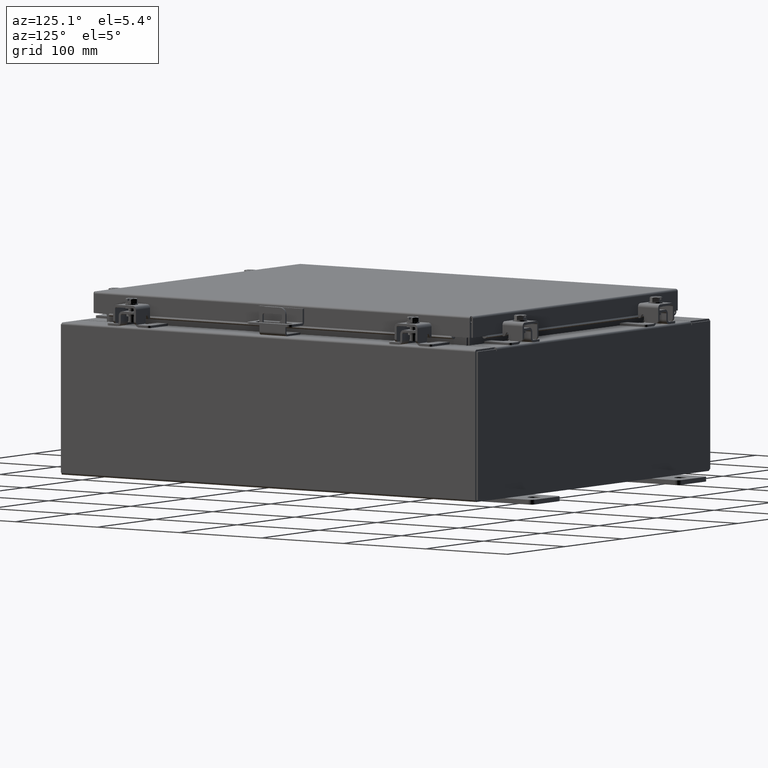
[diagram: clean part render]
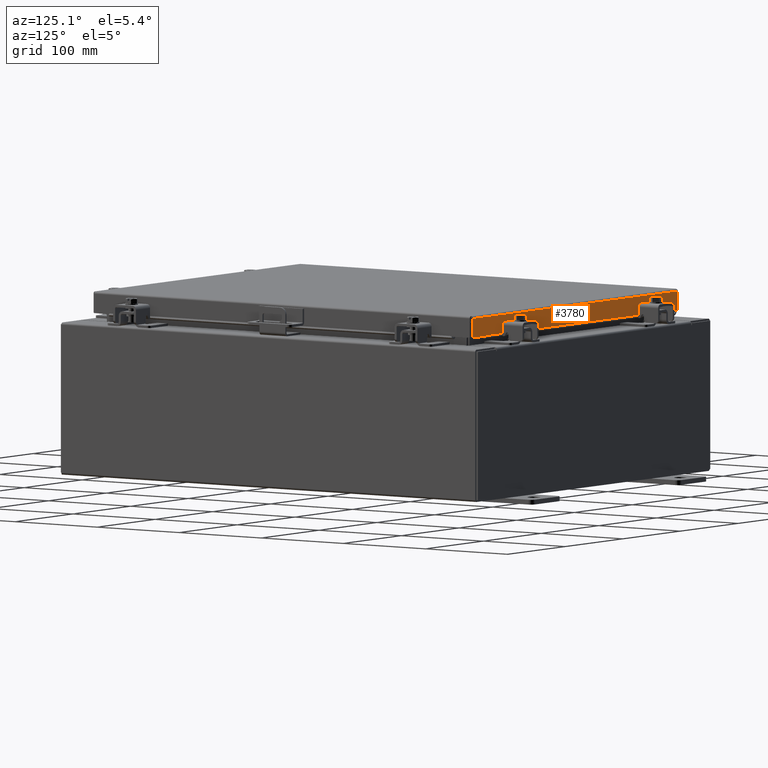
[diagram: same view with one face highlighted and labeled with its STEP entity id]
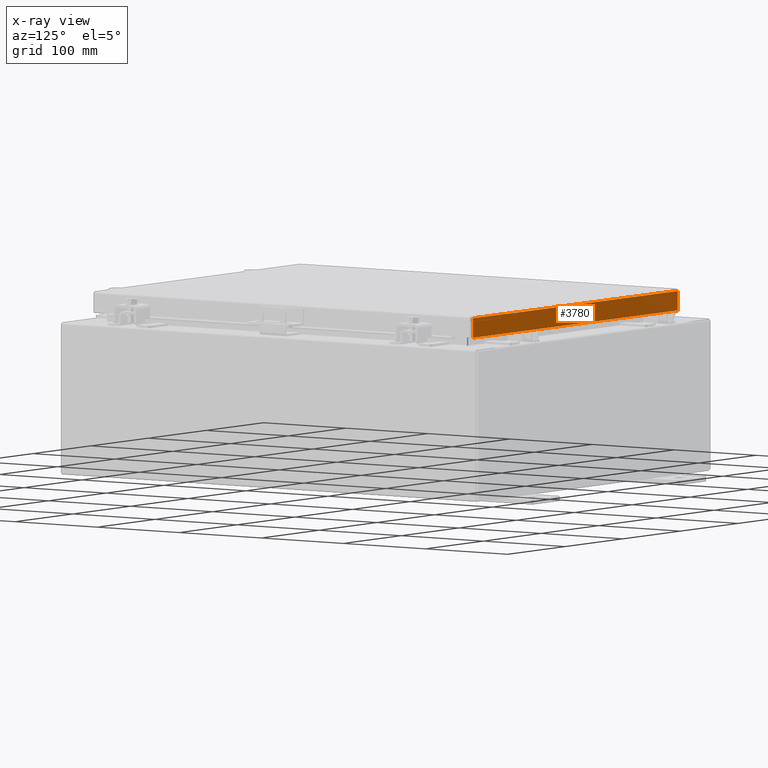
[diagram: x-ray of the same camera — body ghosted, the highlighted face saturated]
A machine part, auxiliary view. The second image highlights one B-rep face of the part: STEP entity #3780.
The next image is the same camera in x-ray: the body ghosted, the highlighted face saturated — about 0% of this face is hidden behind the body in this view.
In plain terms, the highlighted planar face has unit normal (0, -1, -0).
Its self-contained STEP definition (entity closure, byte-faithful):
#693 = CARTESIAN_POINT ( 'NONE',  ( -7.077999999999998500, 9.094000000000001200, -0.08770000000000007000 ) ) ;
#715 = EDGE_CURVE ( 'NONE', #26038, #15860, #7692, .T. ) ;
#902 = VECTOR ( 'NONE', #20021, 39.37007874015748100 ) ;
#1591 = CARTESIAN_POINT ( 'NONE',  ( 6.989157864376270600, 9.094000000000001200, -0.08770000000000115200 ) ) ;
#1772 = CARTESIAN_POINT ( 'NONE',  ( 6.989157864376270600, 9.094000000000001200, 2.589571694958337600E-014 ) ) ;
#1827 = CARTESIAN_POINT ( 'NONE',  ( -7.077999999999998500, 9.094000000000003000, -0.8500000000000013100 ) ) ;
#2999 = VERTEX_POINT ( 'NONE', #23091 ) ;
#3780 = ADVANCED_FACE ( 'NONE', ( #24687 ), #12398, .F. ) ;
#4076 = ORIENTED_EDGE ( 'NONE', *, *, #4588, .F. ) ;
#4588 = EDGE_CURVE ( 'NONE', #2999, #26038, #5438, .T. ) ;
#4690 = CARTESIAN_POINT ( 'NONE',  ( -6.989157864376267100, 9.094000000000001200, -0.08770000000000061100 ) ) ;
#4941 = EDGE_LOOP ( 'NONE', ( #8492, #9032, #20645, #6555, #4076, #14952 ) ) ;
#5438 = LINE ( 'NONE', #1827, #28629 ) ;
#5515 = VERTEX_POINT ( 'NONE', #4690 ) ;
#5689 = DIRECTION ( 'NONE',  ( -0.0000000000000000000, 2.818880942772354200E-015, -1.000000000000000000 ) ) ;
#6022 = EDGE_CURVE ( 'NONE', #22923, #14923, #6494, .T. ) ;
#6494 = LINE ( 'NONE', #1772, #14686 ) ;
#6555 = ORIENTED_EDGE ( 'NONE', *, *, #715, .F. ) ;
#6592 = VECTOR ( 'NONE', #23480, 39.37007874015748100 ) ;
#7361 = VECTOR ( 'NONE', #5689, 39.37007874015748100 ) ;
#7692 = LINE ( 'NONE', #10726, #902 ) ;
#8455 = DIRECTION ( 'NONE',  ( 1.000000000000000000, -0.0000000000000000000, 1.157889796692962600E-016 ) ) ;
#8492 = ORIENTED_EDGE ( 'NONE', *, *, #25650, .F. ) ;
#9032 = ORIENTED_EDGE ( 'NONE', *, *, #6022, .T. ) ;
#9257 = CARTESIAN_POINT ( 'NONE',  ( 6.239157864376270600, 9.093999999999995900, -0.8500000000000018700 ) ) ;
#10726 = CARTESIAN_POINT ( 'NONE',  ( -6.239157864376266200, 9.093999999999995900, -0.8500000000000018700 ) ) ;
#11556 = CARTESIAN_POINT ( 'NONE',  ( -7.077999999999998500, 9.094000000000003000, -0.8500000000000013100 ) ) ;
#12398 = PLANE ( 'NONE',  #14796 ) ;
#12848 = LINE ( 'NONE', #11556, #13554 ) ;
#13400 = LINE ( 'NONE', #25962, #7361 ) ;
#13554 = VECTOR ( 'NONE', #27412, 39.37007874015748100 ) ;
#14686 = VECTOR ( 'NONE', #15425, 39.37007874015748100 ) ;
#14796 = AXIS2_PLACEMENT_3D ( 'NONE', #19740, #19545, #16824 ) ;
#14923 = VERTEX_POINT ( 'NONE', #16577 ) ;
#14952 = ORIENTED_EDGE ( 'NONE', *, *, #15515, .F. ) ;
#15425 = DIRECTION ( 'NONE',  ( 0.0000000000000000000, 2.818880942772354200E-015, -1.000000000000000000 ) ) ;
#15515 = EDGE_CURVE ( 'NONE', #5515, #2999, #13400, .T. ) ;
#15860 = VERTEX_POINT ( 'NONE', #9257 ) ;
#16577 = CARTESIAN_POINT ( 'NONE',  ( 6.989157864376270600, 9.094000000000003000, -0.8499999999999996400 ) ) ;
#16824 = DIRECTION ( 'NONE',  ( 0.0000000000000000000, 2.818880942772354200E-015, -1.000000000000000000 ) ) ;
#18697 = LINE ( 'NONE', #693, #6592 ) ;
#19545 = DIRECTION ( 'NONE',  ( 3.263953481728347800E-031, -1.000000000000000000, -2.818880942772354200E-015 ) ) ;
#19740 = CARTESIAN_POINT ( 'NONE',  ( -2.968239296283759700E-030, 9.094000000000001200, 2.589571694958337600E-014 ) ) ;
#20021 = DIRECTION ( 'NONE',  ( 1.000000000000000000, -0.0000000000000000000, -0.0000000000000000000 ) ) ;
#20298 = CARTESIAN_POINT ( 'NONE',  ( -6.239157864376266200, 9.093999999999995900, -0.8500000000000018700 ) ) ;
#20645 = ORIENTED_EDGE ( 'NONE', *, *, #29104, .F. ) ;
#22923 = VERTEX_POINT ( 'NONE', #1591 ) ;
#23091 = CARTESIAN_POINT ( 'NONE',  ( -6.989157864376267100, 9.094000000000003000, -0.8500000000000013100 ) ) ;
#23480 = DIRECTION ( 'NONE',  ( -1.000000000000000000, -5.439922469547247500E-031, 7.719265311286419400E-017 ) ) ;
#24687 = FACE_OUTER_BOUND ( 'NONE', #4941, .T. ) ;
#25650 = EDGE_CURVE ( 'NONE', #22923, #5515, #18697, .T. ) ;
#25962 = CARTESIAN_POINT ( 'NONE',  ( -6.989157864376267100, 9.094000000000001200, -0.07469999999999978000 ) ) ;
#26038 = VERTEX_POINT ( 'NONE', #20298 ) ;
#27412 = DIRECTION ( 'NONE',  ( 1.000000000000000000, -0.0000000000000000000, 1.157889796692962600E-016 ) ) ;
#28629 = VECTOR ( 'NONE', #8455, 39.37007874015748100 ) ;
#29104 = EDGE_CURVE ( 'NONE', #15860, #14923, #12848, .T. ) ;